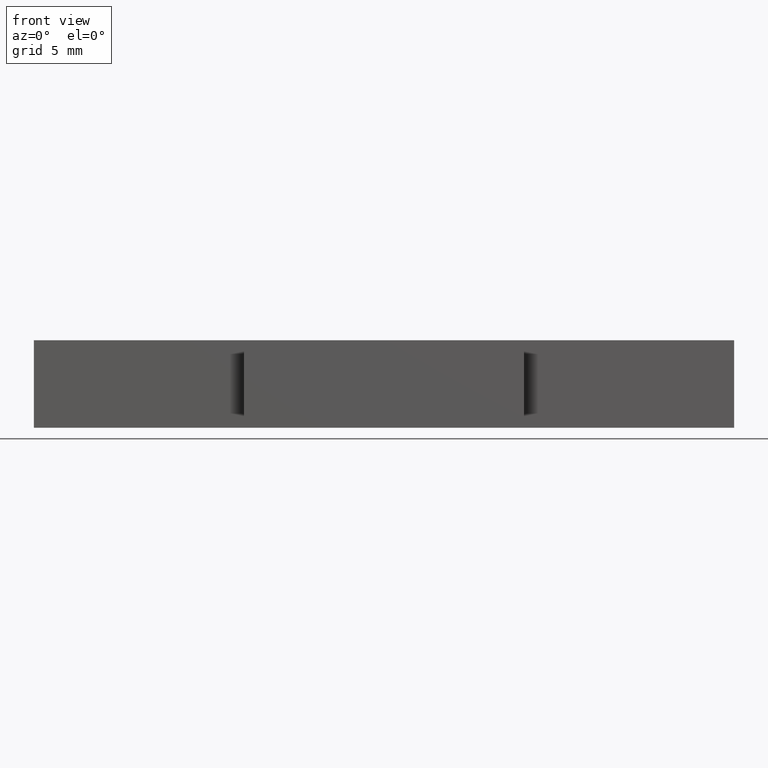
[diagram: clean part render]
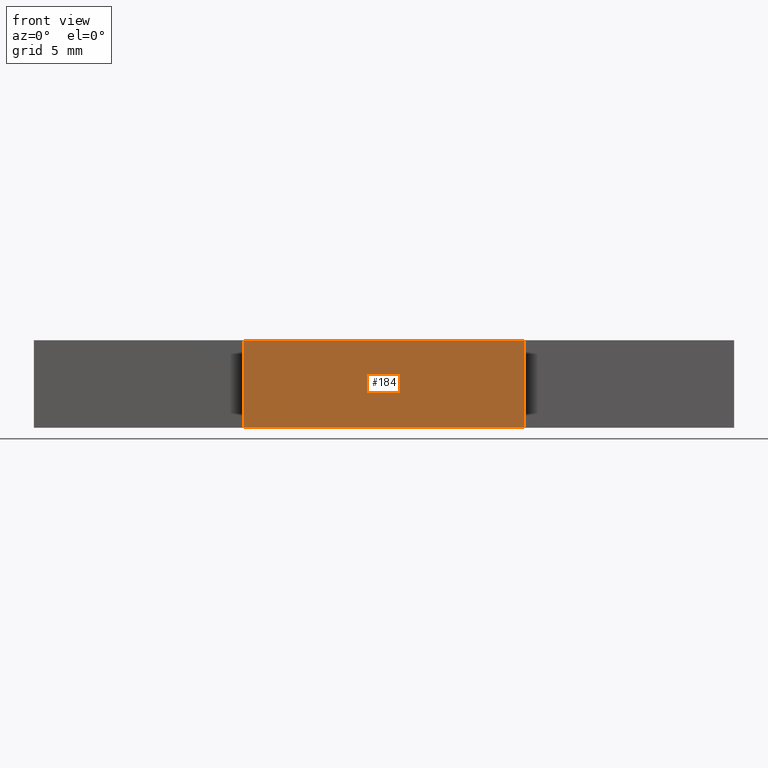
[diagram: same view with one face highlighted and labeled with its STEP entity id]
A machine part, front view. The second image highlights one B-rep face of the part: STEP entity #184.
In plain terms, the highlighted planar face has unit normal (0, -1, 0).
Its self-contained STEP definition (entity closure, byte-faithful):
#18=FACE_OUTER_BOUND('',#28,.T.);
#28=EDGE_LOOP('',(#136,#137,#138,#139));
#39=LINE('',#281,#63);
#45=LINE('',#293,#69);
#47=LINE('',#297,#71);
#48=LINE('',#298,#72);
#63=VECTOR('',#232,10.);
#69=VECTOR('',#240,10.);
#71=VECTOR('',#244,10.);
#72=VECTOR('',#245,10.);
#87=VERTEX_POINT('',#278);
#88=VERTEX_POINT('',#280);
#93=VERTEX_POINT('',#291);
#94=VERTEX_POINT('',#296);
#103=EDGE_CURVE('',#88,#87,#39,.T.);
#109=EDGE_CURVE('',#93,#87,#45,.T.);
#111=EDGE_CURVE('',#93,#94,#47,.T.);
#112=EDGE_CURVE('',#94,#88,#48,.T.);
#136=ORIENTED_EDGE('',*,*,#111,.T.);
#137=ORIENTED_EDGE('',*,*,#112,.T.);
#138=ORIENTED_EDGE('',*,*,#103,.T.);
#139=ORIENTED_EDGE('',*,*,#109,.F.);
#174=PLANE('',#217);
#184=ADVANCED_FACE('',(#18),#174,.T.);
#217=AXIS2_PLACEMENT_3D('',#295,#242,#243);
#232=DIRECTION('',(1.,0.,0.));
#240=DIRECTION('',(0.,0.,-1.));
#242=DIRECTION('center_axis',(0.,-1.,0.));
#243=DIRECTION('ref_axis',(0.,0.,-1.));
#244=DIRECTION('',(-1.,0.,0.));
#245=DIRECTION('',(0.,0.,-1.));
#278=CARTESIAN_POINT('',(8.,-11.,-2.5));
#280=CARTESIAN_POINT('',(-8.,-11.,-2.5));
#281=CARTESIAN_POINT('',(8.,-11.,-2.5));
#291=CARTESIAN_POINT('',(8.,-11.,2.5));
#293=CARTESIAN_POINT('',(8.,-11.,0.));
#295=CARTESIAN_POINT('Origin',(8.,-11.,0.));
#296=CARTESIAN_POINT('',(-8.,-11.,2.5));
#297=CARTESIAN_POINT('',(8.,-11.,2.5));
#298=CARTESIAN_POINT('',(-8.,-11.,0.));